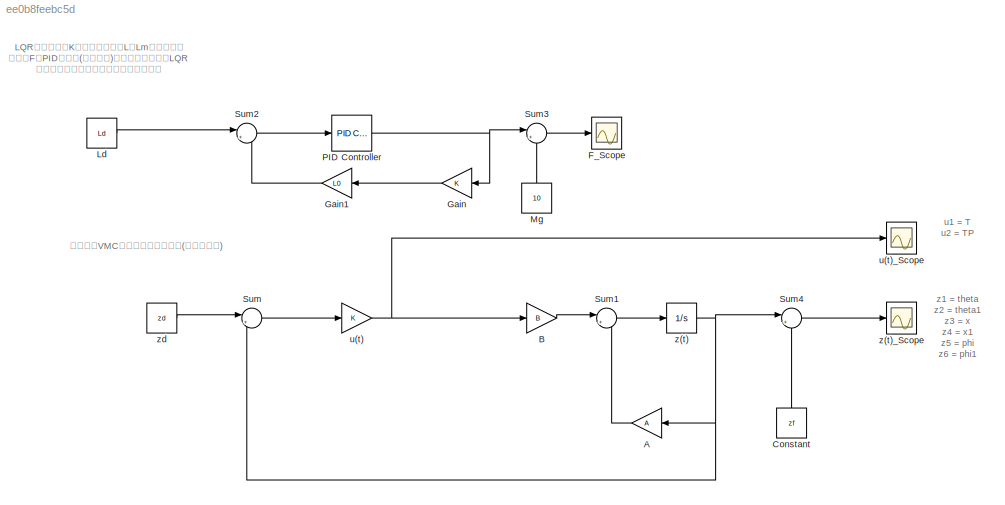
MODEL slx_ee0b8feebc5d
KIND model
CONFIG AbsTol = auto
CONFIG EnableMultiTasking = off
CONFIG FixedStep = auto
CONFIG MaxStep = auto
CONFIG MinStep = auto
CONFIG RelTol = 1e-3
CONFIG SampleTimeConstraint = Unconstrained
CONFIG SolverName = VariableStepAuto
CONFIG StartTime = 0.0
CONFIG StopTime = 10.0
BLOCK [Gain] A
  Gain = A
  Multiplication = Matrix(K*u) (u vector)
  NameLocation = top
BLOCK [Gain] B
  Gain = B
  Multiplication = Matrix(K*u) (u vector)
BLOCK [Constant] Constant
  NameLocation = right
  Value = zf
BLOCK [Scope] F_Scope
  Floating = off
  NumInputPorts = 1
  ScopeSpecificationString = Simulink.scopes.TimeScopeBlockCfg('CurrentConfiguration', extmgr.ConfigurationSet(extmgr.Configuration('Core','General UI',true),extmgr.Configuration('Core','Source UI',true),extmgr.Configuration('Sources','WiredSimulink',true,'DataLoggingVariableName','ScopeData2'),extmgr.Configuration('Visuals','Time Domain',true,'SerializedDisplays',{struct('MinYLimReal','-33.47198','MaxYLimReal','14.42554','YL...<+1816ch>
BLOCK [Gain] Gain
  NameLocation = top
BLOCK [Gain] Gain1
  Gain = L0
  NameLocation = top
BLOCK [Constant] Ld
  Value = Ld
BLOCK [Constant] Mg
  NameLocation = right
  Value = 10
BLOCK [Reference] PID Controller  REF=slpidlib/PID Controller
  SourceBlock = slpidlib/PID Controller
  SourceType = PID 1dof
BLOCK [Sum] Sum
  Inputs = |+-
BLOCK [Sum] Sum1
  Inputs = |++
BLOCK [Sum] Sum2
  Inputs = |+-
BLOCK [Sum] Sum3
  Inputs = |++
BLOCK [Sum] Sum4
  Inputs = |++
BLOCK [Gain] u(t)
  Gain = K
  Multiplication = Matrix(K*u) (u vector)
BLOCK [Scope] u(t)_Scope
  Floating = off
  NumInputPorts = 1
  ScopeSpecificationString = Simulink.scopes.TimeScopeBlockCfg('CurrentConfiguration', extmgr.ConfigurationSet(extmgr.Configuration('Core','General UI',true),extmgr.Configuration('Core','Source UI',true),extmgr.Configuration('Sources','WiredSimulink',true,'DataLoggingVariableName','ScopeData1'),extmgr.Configuration('Visuals','Time Domain',true,'SerializedDisplays',{struct('MinYLimReal','-33.47198','MaxYLimReal','14.42554','YL...<+1984ch>
BLOCK [Integrator] z(t)
BLOCK [Scope] z(t)_Scope
  Floating = off
  NumInputPorts = 1
  ScopeSpecificationString = Simulink.scopes.TimeScopeBlockCfg('CurrentConfiguration', extmgr.ConfigurationSet(extmgr.Configuration('Core','General UI',true,'FigureColor',[1 1 1]),extmgr.Configuration('Core','Source UI',true),extmgr.Configuration('Sources','WiredSimulink',true),extmgr.Configuration('Visuals','Time Domain',true,'SerializedDisplays',{struct('MinYLimReal','-4.4935','MaxYLimReal','10.44288','YLabelReal','','MinYL...<+2498ch>
BLOCK [Constant] zd
  Value = zd
ANNOTATION (root): LQR求增益矩阵K时含有腿长变量L和Lm，腿长通过 控制量F做PID＋前馈(补偿重力)来进行控制，再由LQR 控制平衡及移动，两者有一定耦合关系。
ANNOTATION (root): u1 = T u2 = TP
ANNOTATION (root): z1 = theta z2 = theta1 z3 = x z4 = x1 z5 = phi z6 = phi1
ANNOTATION (root): 这里输入VMC解算出来的实际腿长(编码器测得)
LINE A:1 -> Sum1:2
LINE B:1 -> Sum1:1
LINE Constant:1 -> Sum4:2
LINE Gain1:1 -> Sum2:2
LINE Gain:1 -> Gain1:1
LINE Ld:1 -> Sum2:1
LINE Mg:1 -> Sum3:2
NET PID Controller:1 -> Gain:1, Sum3:1
LINE Sum1:1 -> z(t):1
LINE Sum2:1 -> PID Controller:1
LINE Sum3:1 -> F_Scope:1
LINE Sum4:1 -> z(t)_Scope:1
LINE Sum:1 -> u(t):1
NET u(t):1 -> B:1, u(t)_Scope:1
NET z(t):1 -> A:1, Sum4:1, Sum:2
LINE zd:1 -> Sum:1
note: NET lines group one-source signal fan-out (src -> all destinations, sorted); 1:1 wires keep LINE
